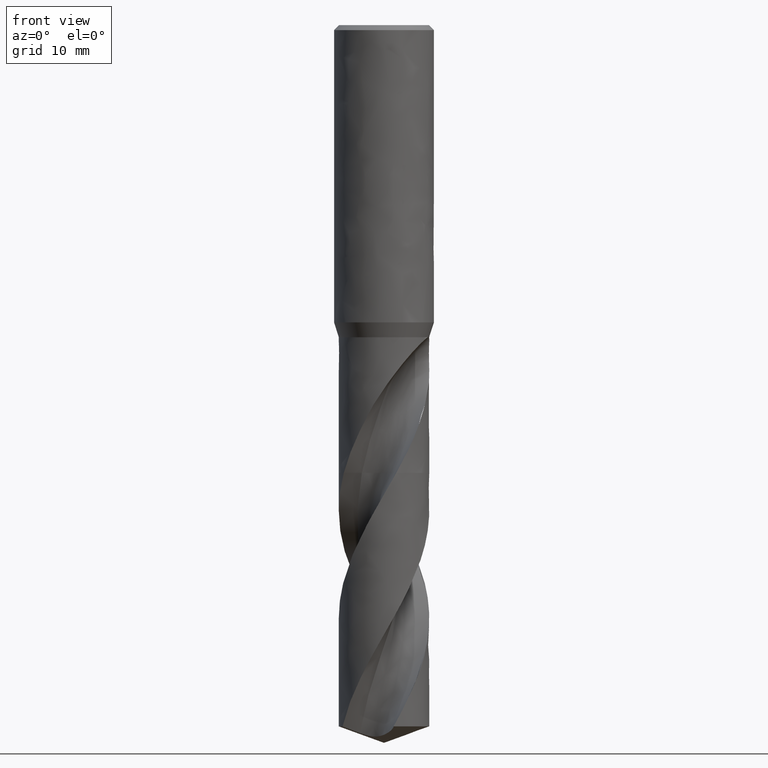
[diagram: clean part render]
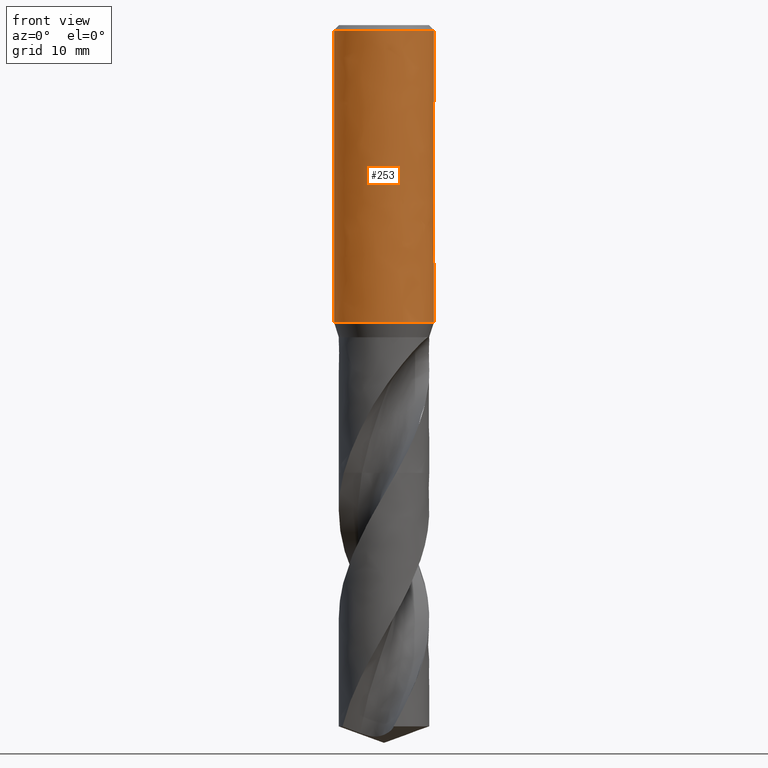
[diagram: same view with one face highlighted and labeled with its STEP entity id]
A machine part, front view. The second image highlights one B-rep face of the part: STEP entity #253.
In plain terms, the highlighted face is a freeform B-spline surface patch.
Its self-contained STEP definition (entity closure, byte-faithful):
#96 = VERTEX_POINT('', #97);
#97 = CARTESIAN_POINT('', (-8., 3.40629383948841E-15, -47.629));
#103 = EDGE_CURVE('', #96, #96, #104, .T.);
#104 = CIRCLE('', #105, 8.);
#105 = AXIS2_PLACEMENT_3D('', #106, #107, #108);
#106 = CARTESIAN_POINT('', (1.78580146721004E-31, 2.91643511982946E-15, -47.629));
#107 = DIRECTION('', (3.74939945665464E-33, 6.12323399573677E-17, -1.));
#108 = DIRECTION('', (-1., 6.12323399573677E-17, 0.));
#202 = VERTEX_POINT('', #203);
#203 = CARTESIAN_POINT('', (-8., 5.38844591624835E-16, -0.799999999999997));
#219 = EDGE_CURVE('', #202, #202, #220, .T.);
#220 = CIRCLE('', #221, 8.);
#221 = AXIS2_PLACEMENT_3D('', #222, #223, #224);
#222 = CARTESIAN_POINT('', (2.99951956532372E-33, 4.89858719658938E-17, -0.799999999999997));
#223 = DIRECTION('', (3.74939945665464E-33, 6.12323399573677E-17, -1.));
#224 = DIRECTION('', (-1., 6.12323399573677E-17, 0.));
#253 = ADVANCED_FACE('', (#254, #265), #457, .T.);
#254 = FACE_OUTER_BOUND('', #255, .T.);
#255 = EDGE_LOOP('', (#256, #262, #263, #264));
#256 = ORIENTED_EDGE('', *, *, #257, .T.);
#257 = EDGE_CURVE('', #96, #202, #258, .T.);
#258 = LINE('', #259, #260);
#259 = CARTESIAN_POINT('', (-8., 3.40629383948841E-15, -47.629));
#260 = VECTOR('', #261, 46.829);
#261 = DIRECTION('', (0., -2.86744924786357E-15, 46.829));
#262 = ORIENTED_EDGE('', *, *, #219, .T.);
#263 = ORIENTED_EDGE('', *, *, #257, .F.);
#264 = ORIENTED_EDGE('', *, *, #103, .F.);
#265 = FACE_BOUND('', #266, .T.);
#266 = EDGE_LOOP('', (#267, #359, #367, #451));
#267 = ORIENTED_EDGE('', *, *, #268, .F.);
#268 = EDGE_CURVE('', #269, #271, #273, .T.);
#269 = VERTEX_POINT('', #270);
#270 = CARTESIAN_POINT('', (-5.05568986390581, 6.2, -19.));
#271 = VERTEX_POINT('', #272);
#272 = CARTESIAN_POINT('', (5.05568986390582, 6.2, -19.));
#273 = B_SPLINE_CURVE_WITH_KNOTS('', 3, (#274, #275, #276, #277, #278, #279, #280, #281, #282, #283, #284, #285, #286, #287, #288, #289, #290, #291, #292, #293, #294, #295, #296, #297, #298, #299, #300, #301, #302, #303, #304, #305, #306, #307, #308, #309, #310, #311, #312, #313, #314, #315, #316, #317, #318, #319, #320, #321, #322, #323, #324, #325, #326, #327, #328, #329, #330, #331, #332, #333, #334, #335, #336, #337, #338, #339, #340, #341, #342, #343, #344, #345, #346, #347, #348, #349, #350, #351, #352, #353, #354, #355, #356, #357, #358), .UNSPECIFIED., .F., .U., (4, 3, 3, 3, 3, 3, 3, 3, 3, 3, 3, 3, 3, 3, 3, 3, 3, 3, 3, 3, 3, 3, 3, 3, 3, 3, 3, 3, 4), (0., 0.0715552449606118, 0.515267703942403, 0.959103708123626, 1.4030789609923, 1.84721060746, 2.29151682687191, 2.73601613894959, 3.18072636722988, 3.62566324837091, 4.0708387570345, 4.51625933021457, 4.96192429382175, 5.40782486479732, 5.85153932222682, 6.29525377965632, 6.74115435063189, 7.18681931423907, 7.63223988741915, 8.07741539608273, 8.52235227722376, 8.96706250550405, 9.41156181758173, 9.85586803699364, 10.2999996834613, 10.74397493633, 11.1878109405112, 11.631523399493, 11.7030786444536), .UNSPECIFIED.);
#274 = CARTESIAN_POINT('', (-5.05568986390581, 6.2, -19.));
#275 = CARTESIAN_POINT('', (-5.04014222737659, 6.21267806909814, -18.9870987031571));
#276 = CARTESIAN_POINT('', (-5.02452580478239, 6.22531485817636, -18.9742394131677));
#277 = CARTESIAN_POINT('', (-5.00884071901778, 6.23790947766233, -18.9614230352671));
#278 = CARTESIAN_POINT('', (-4.91157785620755, 6.31600842883125, -18.8819489651742));
#279 = CARTESIAN_POINT('', (-4.81163939845599, 6.39251324232811, -18.8040971013619));
#280 = CARTESIAN_POINT('', (-4.70906730229046, 6.46720071920603, -18.7280945727285));
#281 = CARTESIAN_POINT('', (-4.60646664643537, 6.54190899171192, -18.6520708823103));
#282 = CARTESIAN_POINT('', (-4.50116623974912, 6.61484555123045, -18.5778501001263));
#283 = CARTESIAN_POINT('', (-4.39323461834961, 6.68576768876504, -18.5056792086457));
#284 = CARTESIAN_POINT('', (-4.28526913458546, 6.75671207734387, -18.433485674338));
#285 = CARTESIAN_POINT('', (-4.17459522725676, 6.82568989175049, -18.3632933404468));
#286 = CARTESIAN_POINT('', (-4.06131530459738, 6.89243919063804, -18.2953687604231));
#287 = CARTESIAN_POINT('', (-3.94799547823911, 6.9592120024647, -18.2274202534587));
#288 = CARTESIAN_POINT('', (-3.83197963542357, 7.02380602538812, -18.1616888981901));
#289 = CARTESIAN_POINT('', (-3.71341243398356, 7.08594158140867, -18.0984592970171));
#290 = CARTESIAN_POINT('', (-3.59479862783612, 7.14810156078892, -18.0352048424528));
#291 = CARTESIAN_POINT('', (-3.47352891199457, 7.20785409775301, -17.9744002190893));
#292 = CARTESIAN_POINT('', (-3.34979938431852, 7.26490496048086, -17.916344839402));
#293 = CARTESIAN_POINT('', (-3.22601608457426, 7.32198061715191, -17.8582642292148));
#294 = CARTESIAN_POINT('', (-3.09965217477548, 7.37640605078488, -17.8028805055842));
#295 = CARTESIAN_POINT('', (-2.97096462447783, 7.42787783960543, -17.7505024327509));
#296 = CARTESIAN_POINT('', (-2.84221601156728, 7.47937405193788, -17.6980995063713));
#297 = CARTESIAN_POINT('', (-2.71100525806592, 7.52796729479474, -17.6486506631917));
#298 = CARTESIAN_POINT('', (-2.57765892113578, 7.57335292233824, -17.6024659130687));
#299 = CARTESIAN_POINT('', (-2.4442446223581, 7.61876168130906, -17.5562576242343));
#300 = CARTESIAN_POINT('', (-2.30853756708194, 7.6610111805601, -17.5132642214471));
#301 = CARTESIAN_POINT('', (-2.17094052799763, 7.69980631080402, -17.4737860100996));
#302 = CARTESIAN_POINT('', (-2.03326969318646, 7.73862224756278, -17.4342866258887));
#303 = CARTESIAN_POINT('', (-1.89353282221385, 7.7740280078808, -17.3982574624353));
#304 = CARTESIAN_POINT('', (-1.75221174710741, 7.8057513407294, -17.3659755643989));
#305 = CARTESIAN_POINT('', (-1.61081287620973, 7.83749213694486, -17.3336758955112));
#306 = CARTESIAN_POINT('', (-1.46763570536334, 7.86558850294194, -17.3050848257569));
#307 = CARTESIAN_POINT('', (-1.32323844057081, 7.88980608313004, -17.2804408371176));
#308 = CARTESIAN_POINT('', (-1.17876194883785, 7.91403695086057, -17.2557833269769));
#309 = CARTESIAN_POINT('', (-1.03285530791546, 7.93441879564517, -17.2350426110417));
#310 = CARTESIAN_POINT('', (-0.886143558045865, 7.95077037742468, -17.218403120536));
#311 = CARTESIAN_POINT('', (-0.739354246841814, 7.96713060370952, -17.2017548333179));
#312 = CARTESIAN_POINT('', (-0.591537202848804, 7.9794802850383, -17.1891877062969));
#313 = CARTESIAN_POINT('', (-0.443367564010622, 7.98770462668616, -17.1808185554337));
#314 = CARTESIAN_POINT('', (-0.295924355403, 7.99588864691293, -17.1724904359467));
#315 = CARTESIAN_POINT('', (-0.147904819143166, 8., -17.1683066926502));
#316 = CARTESIAN_POINT('', (2.44929359829471E-16, 8., -17.1683066926502));
#317 = CARTESIAN_POINT('', (0.147904819143166, 8., -17.1683066926502));
#318 = CARTESIAN_POINT('', (0.295924355403, 7.99588864691293, -17.1724904359467));
#319 = CARTESIAN_POINT('', (0.443367564010622, 7.98770462668615, -17.1808185554337));
#320 = CARTESIAN_POINT('', (0.591537202848804, 7.9794802850383, -17.1891877062969));
#321 = CARTESIAN_POINT('', (0.739354246841814, 7.96713060370952, -17.2017548333179));
#322 = CARTESIAN_POINT('', (0.886143558045865, 7.95077037742468, -17.218403120536));
#323 = CARTESIAN_POINT('', (1.03285530791546, 7.93441879564517, -17.2350426110417));
#324 = CARTESIAN_POINT('', (1.17876194883785, 7.91403695086057, -17.2557833269769));
#325 = CARTESIAN_POINT('', (1.32323844057081, 7.88980608313004, -17.2804408371176));
#326 = CARTESIAN_POINT('', (1.46763570536334, 7.86558850294194, -17.3050848257569));
#327 = CARTESIAN_POINT('', (1.61081287620973, 7.83749213694486, -17.3336758955112));
#328 = CARTESIAN_POINT('', (1.75221174710742, 7.8057513407294, -17.3659755643989));
#329 = CARTESIAN_POINT('', (1.89353282221385, 7.7740280078808, -17.3982574624353));
#330 = CARTESIAN_POINT('', (2.03326969318647, 7.73862224756278, -17.4342866258887));
#331 = CARTESIAN_POINT('', (2.17094052799763, 7.69980631080402, -17.4737860100996));
#332 = CARTESIAN_POINT('', (2.30853756708194, 7.6610111805601, -17.5132642214471));
#333 = CARTESIAN_POINT('', (2.4442446223581, 7.61876168130906, -17.5562576242343));
#334 = CARTESIAN_POINT('', (2.57765892113579, 7.57335292233824, -17.6024659130687));
#335 = CARTESIAN_POINT('', (2.71100525806592, 7.52796729479474, -17.6486506631917));
#336 = CARTESIAN_POINT('', (2.84221601156728, 7.47937405193788, -17.6980995063713));
#337 = CARTESIAN_POINT('', (2.97096462447783, 7.42787783960543, -17.7505024327509));
#338 = CARTESIAN_POINT('', (3.09965217477548, 7.37640605078488, -17.8028805055842));
#339 = CARTESIAN_POINT('', (3.22601608457426, 7.32198061715191, -17.8582642292148));
#340 = CARTESIAN_POINT('', (3.34979938431852, 7.26490496048086, -17.916344839402));
#341 = CARTESIAN_POINT('', (3.47352891199457, 7.20785409775301, -17.9744002190893));
#342 = CARTESIAN_POINT('', (3.59479862783612, 7.14810156078892, -18.0352048424528));
#343 = CARTESIAN_POINT('', (3.71341243398356, 7.08594158140867, -18.0984592970171));
#344 = CARTESIAN_POINT('', (3.83197963542358, 7.02380602538812, -18.1616888981901));
#345 = CARTESIAN_POINT('', (3.94799547823911, 6.9592120024647, -18.2274202534587));
#346 = CARTESIAN_POINT('', (4.06131530459738, 6.89243919063804, -18.2953687604231));
#347 = CARTESIAN_POINT('', (4.17459522725676, 6.82568989175049, -18.3632933404468));
#348 = CARTESIAN_POINT('', (4.28526913458546, 6.75671207734387, -18.433485674338));
#349 = CARTESIAN_POINT('', (4.39323461834961, 6.68576768876504, -18.5056792086457));
#350 = CARTESIAN_POINT('', (4.50116623974912, 6.61484555123045, -18.5778501001263));
#351 = CARTESIAN_POINT('', (4.60646664643537, 6.54190899171192, -18.6520708823103));
#352 = CARTESIAN_POINT('', (4.70906730229045, 6.46720071920603, -18.7280945727285));
#353 = CARTESIAN_POINT('', (4.81163939845599, 6.39251324232812, -18.8040971013619));
#354 = CARTESIAN_POINT('', (4.91157785620755, 6.31600842883125, -18.8819489651742));
#355 = CARTESIAN_POINT('', (5.00884071901778, 6.23790947766233, -18.9614230352671));
#356 = CARTESIAN_POINT('', (5.02452580478239, 6.22531485817636, -18.9742394131677));
#357 = CARTESIAN_POINT('', (5.04014222737659, 6.21267806909814, -18.9870987031571));
#358 = CARTESIAN_POINT('', (5.05568986390582, 6.2, -19.));
#359 = ORIENTED_EDGE('', *, *, #360, .T.);
#360 = EDGE_CURVE('', #269, #361, #363, .T.);
#361 = VERTEX_POINT('', #362);
#362 = CARTESIAN_POINT('', (-5.05568986390582, 6.2, -29.));
#363 = LINE('', #364, #365);
#364 = CARTESIAN_POINT('', (-5.05568986390581, 6.2, -19.));
#365 = VECTOR('', #366, 10.);
#366 = DIRECTION('', (-8.88178419700125E-16, -1.77635683940025E-15, -10.));
#367 = ORIENTED_EDGE('', *, *, #368, .T.);
#368 = EDGE_CURVE('', #361, #369, #371, .T.);
#369 = VERTEX_POINT('', #370);
#370 = CARTESIAN_POINT('', (5.05568986390581, 6.2, -29.));
#371 = B_SPLINE_CURVE_WITH_KNOTS('', 3, (#372, #373, #374, #375, #376, #377, #378, #379, #380, #381, #382, #383, #384, #385, #386, #387, #388, #389, #390, #391, #392, #393, #394, #395, #396, #397, #398, #399, #400, #401, #402, #403, #404, #405, #406, #407, #408, #409, #410, #411, #412, #413, #414, #415, #416, #417, #418, #419, #420, #421, #422, #423, #424, #425, #426, #427, #428, #429, #430, #431, #432, #433, #434, #435, #436, #437, #438, #439, #440, #441, #442, #443, #444, #445, #446, #447, #448, #449, #450), .UNSPECIFIED., .F., .U., (4, 3, 3, 3, 3, 3, 3, 3, 3, 3, 3, 3, 3, 3, 3, 3, 3, 3, 3, 3, 3, 3, 3, 3, 3, 3, 4), (0., 0.664784785909982, 1.32926491288949, 1.99338493283459, 2.43609864632022, 2.87866087249497, 3.32105627818311, 3.76326994438665, 4.20528837573478, 4.6471007269889, 5.08870013291454, 5.38336805907406, 5.85127958107637, 6.29499403850587, 6.74089460948144, 7.18655957308862, 7.6319801462687, 8.07715565493228, 8.52209253607332, 8.9668027643536, 9.41130207643129, 9.8556082958432, 10.2997399423109, 10.7437151951796, 11.1875511993608, 11.6312636583426, 11.7028189033032), .UNSPECIFIED.);
#372 = CARTESIAN_POINT('', (-5.05568986390582, 6.2, -29.));
#373 = CARTESIAN_POINT('', (-4.91124437668575, 6.317785739617, -29.119859639421));
#374 = CARTESIAN_POINT('', (-4.76076338877188, 6.43208321048409, -29.2361695907735));
#375 = CARTESIAN_POINT('', (-4.6043955849627, 6.54213583603846, -29.3481599561536));
#376 = CARTESIAN_POINT('', (-4.44809944171025, 6.65213802645064, -29.4600989983601));
#377 = CARTESIAN_POINT('', (-4.28569060942485, 6.75805850532452, -29.5678844607295));
#378 = CARTESIAN_POINT('', (-4.11746309071595, 6.85904495513745, -29.6706490186491));
#379 = CARTESIAN_POINT('', (-3.94932674089294, 6.95997667655523, -29.7733578845492));
#380 = CARTESIAN_POINT('', (-3.77508736981155, 7.0561494538195, -29.8712240136962));
#381 = CARTESIAN_POINT('', (-3.59524253429577, 7.14662375668385, -29.963291333165));
#382 = CARTESIAN_POINT('', (-3.47535490466372, 7.20693546750897, -30.0246649759834));
#383 = CARTESIAN_POINT('', (-3.35285175834852, 7.26477945907181, -30.0835274494364));
#384 = CARTESIAN_POINT('', (-3.22794572824265, 7.31986108990603, -30.1395789241902));
#385 = CARTESIAN_POINT('', (-3.10308243835024, 7.37492387296599, -30.1956112193097));
#386 = CARTESIAN_POINT('', (-2.97569529463872, 7.42727932743679, -30.2488885168416));
#387 = CARTESIAN_POINT('', (-2.8460591573936, 7.47662673086041, -30.2991047993894));
#388 = CARTESIAN_POINT('', (-2.71647188551072, 7.52595553315324, -30.3493021532891));
#389 = CARTESIAN_POINT('', (-2.58449733375249, 7.57233080251388, -30.3964939702415));
#390 = CARTESIAN_POINT('', (-2.45048017291899, 7.61545447902693, -30.4403769422733));
#391 = CARTESIAN_POINT('', (-2.31651806738087, 7.65856043999718, -30.4842418868378));
#392 = CARTESIAN_POINT('', (-2.1803569778845, 7.69846723358607, -30.5248513350237));
#393 = CARTESIAN_POINT('', (-2.04241633068145, 7.73489078993143, -30.5619162152391));
#394 = CARTESIAN_POINT('', (-1.9045365835011, 7.77129826548079, -30.5989647315175));
#395 = CARTESIAN_POINT('', (-1.76470283633931, 7.80427094417612, -30.632517973124));
#396 = CARTESIAN_POINT('', (-1.62340995412958, 7.83355220323662, -30.6623147988195));
#397 = CARTESIAN_POINT('', (-1.48218294621011, 7.86281981063875, -30.6920977324865));
#398 = CARTESIAN_POINT('', (-1.33930536184872, 7.88843835910639, -30.7181673568044));
#399 = CARTESIAN_POINT('', (-1.195342434037, 7.91019320025692, -30.7403052439921));
#400 = CARTESIAN_POINT('', (-1.05144889367645, 7.931937555979, -30.7624324611303));
#401 = CARTESIAN_POINT('', (-0.906263856351965, 7.94985237381852, -30.7806627122076));
#402 = CARTESIAN_POINT('', (-0.760411211639095, 7.96377892644025, -30.794834475114));
#403 = CARTESIAN_POINT('', (-0.663087492979792, 7.97307175683026, -30.8042909280206));
#404 = CARTESIAN_POINT('', (-0.565386645150535, 7.9805984507258, -30.8119501473733));
#405 = CARTESIAN_POINT('', (-0.467504780735861, 7.98632827274143, -30.8177808566168));
#406 = CARTESIAN_POINT('', (-0.312075403838223, 7.9954268189425, -30.8270396044963));
#407 = CARTESIAN_POINT('', (-0.155970507334103, 8., -30.8316933073498));
#408 = CARTESIAN_POINT('', (2.44929359829471E-16, 8., -30.8316933073498));
#409 = CARTESIAN_POINT('', (0.147904819143166, 8., -30.8316933073498));
#410 = CARTESIAN_POINT('', (0.295924355403001, 7.99588864691293, -30.8275095640533));
#411 = CARTESIAN_POINT('', (0.443367564010622, 7.98770462668616, -30.8191814445663));
#412 = CARTESIAN_POINT('', (0.591537202848805, 7.9794802850383, -30.8108122937031));
#413 = CARTESIAN_POINT('', (0.739354246841814, 7.96713060370952, -30.7982451666821));
#414 = CARTESIAN_POINT('', (0.886143558045865, 7.95077037742468, -30.781596879464));
#415 = CARTESIAN_POINT('', (1.03285530791546, 7.93441879564517, -30.7649573889583));
#416 = CARTESIAN_POINT('', (1.17876194883785, 7.91403695086057, -30.7442166730231));
#417 = CARTESIAN_POINT('', (1.32323844057081, 7.88980608313004, -30.7195591628824));
#418 = CARTESIAN_POINT('', (1.46763570536334, 7.86558850294194, -30.6949151742431));
#419 = CARTESIAN_POINT('', (1.61081287620973, 7.83749213694486, -30.6663241044888));
#420 = CARTESIAN_POINT('', (1.75221174710742, 7.8057513407294, -30.6340244356011));
#421 = CARTESIAN_POINT('', (1.89353282221385, 7.7740280078808, -30.6017425375647));
#422 = CARTESIAN_POINT('', (2.03326969318647, 7.73862224756278, -30.5657133741113));
#423 = CARTESIAN_POINT('', (2.17094052799763, 7.69980631080403, -30.5262139899004));
#424 = CARTESIAN_POINT('', (2.30853756708194, 7.66101118056011, -30.4867357785529));
#425 = CARTESIAN_POINT('', (2.44424462235811, 7.61876168130906, -30.4437423757657));
#426 = CARTESIAN_POINT('', (2.57765892113579, 7.57335292233824, -30.3975340869313));
#427 = CARTESIAN_POINT('', (2.71100525806592, 7.52796729479474, -30.3513493368083));
#428 = CARTESIAN_POINT('', (2.84221601156728, 7.47937405193788, -30.3019004936287));
#429 = CARTESIAN_POINT('', (2.97096462447783, 7.42787783960543, -30.2494975672491));
#430 = CARTESIAN_POINT('', (3.09965217477548, 7.37640605078488, -30.1971194944158));
#431 = CARTESIAN_POINT('', (3.22601608457426, 7.32198061715191, -30.1417357707852));
#432 = CARTESIAN_POINT('', (3.34979938431852, 7.26490496048086, -30.083655160598));
#433 = CARTESIAN_POINT('', (3.47352891199457, 7.20785409775301, -30.0255997809107));
#434 = CARTESIAN_POINT('', (3.59479862783612, 7.14810156078892, -29.9647951575472));
#435 = CARTESIAN_POINT('', (3.71341243398356, 7.08594158140867, -29.9015407029829));
#436 = CARTESIAN_POINT('', (3.83197963542358, 7.02380602538812, -29.8383111018099));
#437 = CARTESIAN_POINT('', (3.94799547823911, 6.9592120024647, -29.7725797465413));
#438 = CARTESIAN_POINT('', (4.06131530459738, 6.89243919063804, -29.7046312395769));
#439 = CARTESIAN_POINT('', (4.17459522725676, 6.82568989175049, -29.6367066595532));
#440 = CARTESIAN_POINT('', (4.28526913458546, 6.75671207734387, -29.566514325662));
#441 = CARTESIAN_POINT('', (4.39323461834961, 6.68576768876504, -29.4943207913543));
#442 = CARTESIAN_POINT('', (4.50116623974912, 6.61484555123045, -29.4221498998737));
#443 = CARTESIAN_POINT('', (4.60646664643537, 6.54190899171192, -29.3479291176897));
#444 = CARTESIAN_POINT('', (4.70906730229045, 6.46720071920603, -29.2719054272715));
#445 = CARTESIAN_POINT('', (4.81163939845599, 6.39251324232812, -29.1959028986381));
#446 = CARTESIAN_POINT('', (4.91157785620755, 6.31600842883125, -29.1180510348258));
#447 = CARTESIAN_POINT('', (5.00884071901778, 6.23790947766233, -29.0385769647329));
#448 = CARTESIAN_POINT('', (5.02452580478239, 6.22531485817636, -29.0257605868323));
#449 = CARTESIAN_POINT('', (5.04014222737659, 6.21267806909815, -29.0129012968429));
#450 = CARTESIAN_POINT('', (5.05568986390581, 6.2, -29.));
#451 = ORIENTED_EDGE('', *, *, #452, .F.);
#452 = EDGE_CURVE('', #271, #369, #453, .T.);
#453 = LINE('', #454, #455);
#454 = CARTESIAN_POINT('', (5.05568986390582, 6.2, -19.));
#455 = VECTOR('', #456, 10.);
#456 = DIRECTION('', (-1.77635683940025E-15, 0., -10.));
#457 = (
   BOUNDED_SURFACE ()
   B_SPLINE_SURFACE (1, 2, ((#458, #459, #460, #461, #462, #463, #464, #465, #466), (#467, #468, #469, #470, #471, #472, #473, #474, #475)), .UNSPECIFIED., .F., .T., .U.)
   B_SPLINE_SURFACE_WITH_KNOTS ((2, 2), (3, 2, 2, 2, 3), (0., 1.), (0., 12.5663706143592, 25.1327412287183, 37.6991118430775, 50.2654824574367), .UNSPECIFIED.)
   GEOMETRIC_REPRESENTATION_ITEM ()
   RATIONAL_B_SPLINE_SURFACE (((1., 0.707106781186548, 1., 0.707106781186548, 1., 0.707106781186548, 1., 0.707106781186548, 1.), (1., 0.707106781186548, 1., 0.707106781186548, 1., 0.707106781186548, 1., 0.707106781186548, 1.)))
   REPRESENTATION_ITEM ('')
   SURFACE ()
);
#458 = CARTESIAN_POINT('', (-8., 3.40629383948841E-15, -47.629));
#459 = CARTESIAN_POINT('', (-8., 8., -47.629));
#460 = CARTESIAN_POINT('', (1.97215226305253E-31, 8., -47.629));
#461 = CARTESIAN_POINT('', (8., 8., -47.629));
#462 = CARTESIAN_POINT('', (8., 3.40629383948841E-15, -47.629));
#463 = CARTESIAN_POINT('', (8., -8., -47.629));
#464 = CARTESIAN_POINT('', (9.79717439317883E-16, -8., -47.629));
#465 = CARTESIAN_POINT('', (-8., -8., -47.629));
#466 = CARTESIAN_POINT('', (-8., 3.40629383948841E-15, -47.629));
#467 = CARTESIAN_POINT('', (-8., 5.38844591624835E-16, -0.799999999999997));
#468 = CARTESIAN_POINT('', (-8., 8., -0.799999999999997));
#469 = CARTESIAN_POINT('', (0., 8., -0.799999999999997));
#470 = CARTESIAN_POINT('', (8., 8., -0.799999999999997));
#471 = CARTESIAN_POINT('', (8., 5.38844591624835E-16, -0.799999999999997));
#472 = CARTESIAN_POINT('', (8., -8., -0.799999999999998));
#473 = CARTESIAN_POINT('', (9.79717439317882E-16, -8., -0.799999999999998));
#474 = CARTESIAN_POINT('', (-8., -8., -0.799999999999998));
#475 = CARTESIAN_POINT('', (-8., 5.38844591624835E-16, -0.799999999999997));